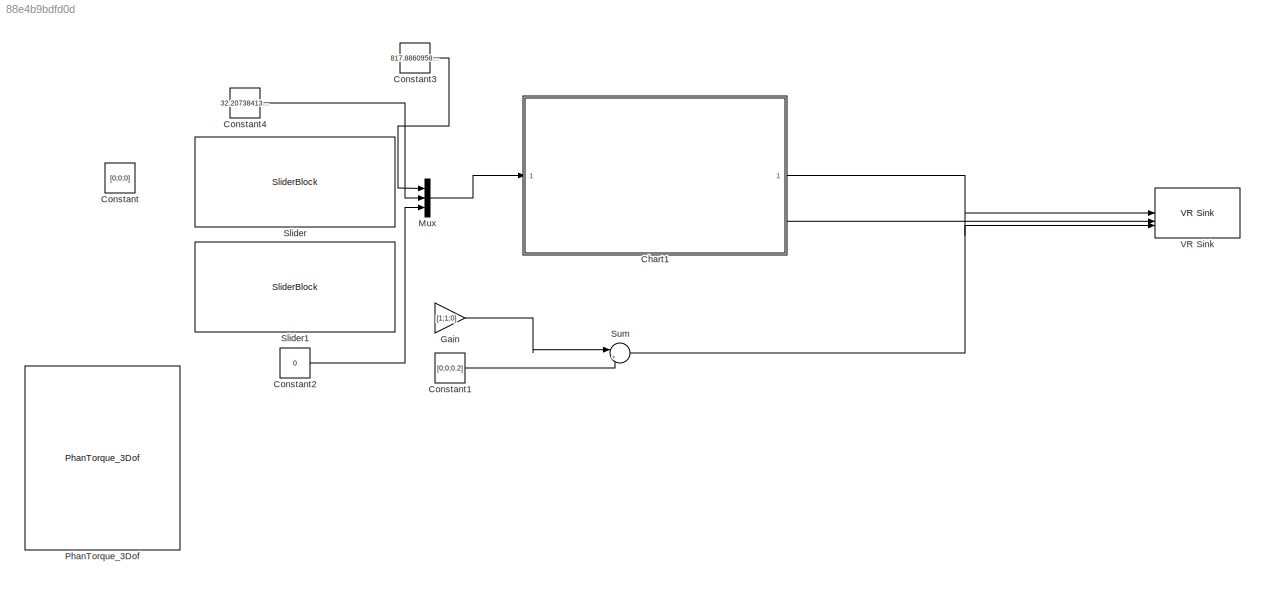
MODEL slx_88e4b9bdfd0d
KIND model
CONFIG AbsTol = auto
CONFIG EnableMultiTasking = off
CONFIG FixedStep = 0.001
CONFIG MaxStep = auto
CONFIG MinStep = auto
CONFIG RelTol = 1e-3
CONFIG SampleTimeConstraint = Unconstrained
CONFIG SolverName = FixedStepDiscrete
CONFIG StartTime = 0.0
CONFIG StopTime = inf
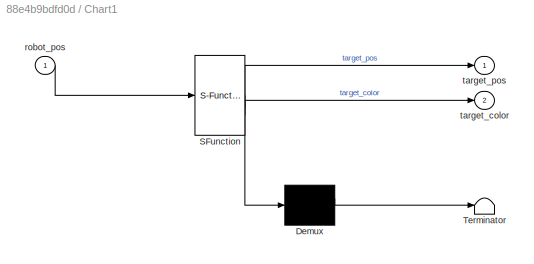
BLOCK [SubSystem] Chart1
  ErrorFcn = Stateflow.Translate.translate
  PermitHierarchicalResolution = ExplicitOnly
  SFBlockType = Chart
  TreatAsAtomicUnit = on
BLOCK [Demux] Chart1/ Demux 
  Outputs = 1
BLOCK [S-Function] Chart1/ SFunction 
  EnableBusSupport = off
  FunctionName = sf_sfun
  PortCounts = [1 3]
  SFcnIsStateOwnerBlock = off
  SFunctionDeploymentMode = off
  Tag = Stateflow S-Function 1
BLOCK [Terminator] Chart1/ Terminator 
BLOCK [Inport] Chart1/robot_pos
BLOCK [Outport] Chart1/target_color
  Port = 2
BLOCK [Outport] Chart1/target_pos
BLOCK [Constant] Constant
  Value = [0;0;0]
BLOCK [Constant] Constant1
  Value = [0;0;0.2]
BLOCK [Constant] Constant2
  Value = 0
BLOCK [Constant] Constant3
  Value = 817.8860958366065
BLOCK [Constant] Constant4
  Value = 32.20738413197172
BLOCK [Gain] Gain
  Gain = [1;1;0]
BLOCK [Mux] Mux
  DisplayOption = bar
  Inputs = 3
BLOCK [Reference] PhanTorque_3Dof  REF=PhanTorque_3Dof_Library_64Bits/PhanTorque_3Dof
  SourceBlock = PhanTorque_3Dof_Library_64Bits/PhanTorque_3Dof
BLOCK [SliderBlock] Slider
  ScaleMax = 10000
  ScaleMin = 1
BLOCK [SliderBlock] Slider1
BLOCK [Sum] Sum
  Inputs = |++
BLOCK [Reference] VR Sink  REF=vrlib/VR Sink
  InstantiateOnLoad = on
  SourceBlock = vrlib/VR Sink
  SourceType = Virtual Reality Sink
LINE Chart1:1 -> VR Sink:1
LINE Chart1:2 -> VR Sink:2
LINE Constant1:1 -> Sum:2
LINE Constant2:1 -> Mux:3
LINE Constant3:1 -> Mux:1
LINE Constant4:1 -> Mux:2
LINE Gain:1 -> Sum:1
LINE Mux:1 -> Chart1:1
LINE Sum:1 -> VR Sink:3
CHART Chart1 states=6 transitions=9
  STATE_LABEL 'Start\nentry:\nradius = 0.1;\nthreshold = 0.01;\ntarget_color = [0 0 1];\ni = 1;\ntarget_pos = [0; 0; 0];'
  STATE_LABEL 'Finish\n'
  STATE_LABEL 'Target\nentry:\ntarget_color = [1 1 1];\ntarget_pos = [radius*cos(angle); radius*sin(angle); 0];\ndistance_diff = (robot_pos(1,1)-target_pos(1,1))^2 +(robot_pos(2,1)-target_pos(2,1))^2;\ndistance = sqrt(distance_diff);\nduring:\ndistance_diff = (robot_pos(1,1)-target_pos(1,1))^2 +(robot_pos(2,1)-target_pos(2,1))^2;\ndistance = sqrt(distance_diff);'
  STATE_LABEL 'Colour_change_two\nentry:\ntarget_color = [1 0 0];\nduring:\ndistance_diff = (robot_pos(1,1)-target_pos(1,1))^2 +(robot_pos(2,1)-target_pos(2,1))^2;\ndistance = sqrt(distance_diff);'
  STATE_LABEL 'Colour_1\ntarget_color = [1 0 1];\nduring:\ndistance_diff = (robot_pos(1,1)-target_pos(1,1))^2 +(robot_pos(2,1)-target_pos(2,1))^2;\ndistance = sqrt(distance_diff);\n'
  STATE_LABEL 'Hometarget\ntarget_pos = [0; 0; 0];\ntarget_color = [0 0 1];\ndistance_diff =  (robot_pos(1,1)-target_pos(1,1))^2 +(robot_pos(2,1)-target_pos(2,1))^2;\ndistance = sqrt(distance_diff);\nduring:\ndistance_diff =  (robot_pos(1,1)-target_pos(1,1))^2 +(robot_pos(2,1)-target_pos(2,1))^2;\ndistance = sqrt(distance_diff);\n'
CHART  states=0 transitions=0
